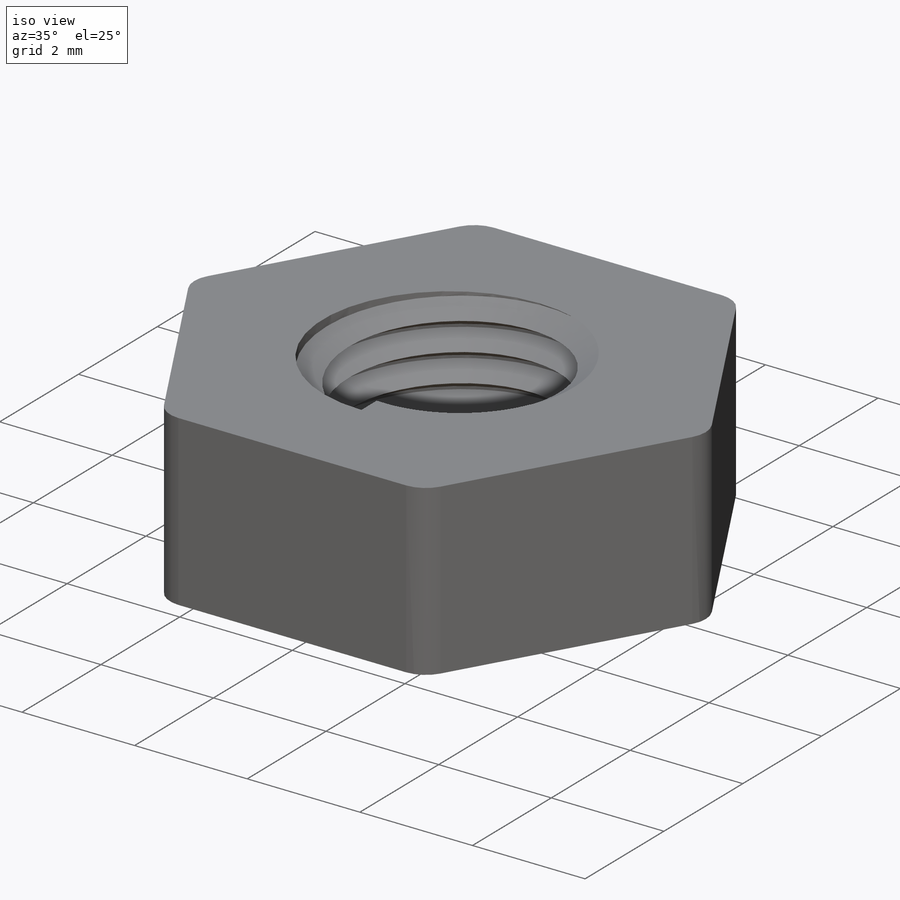
[diagram: iso view]
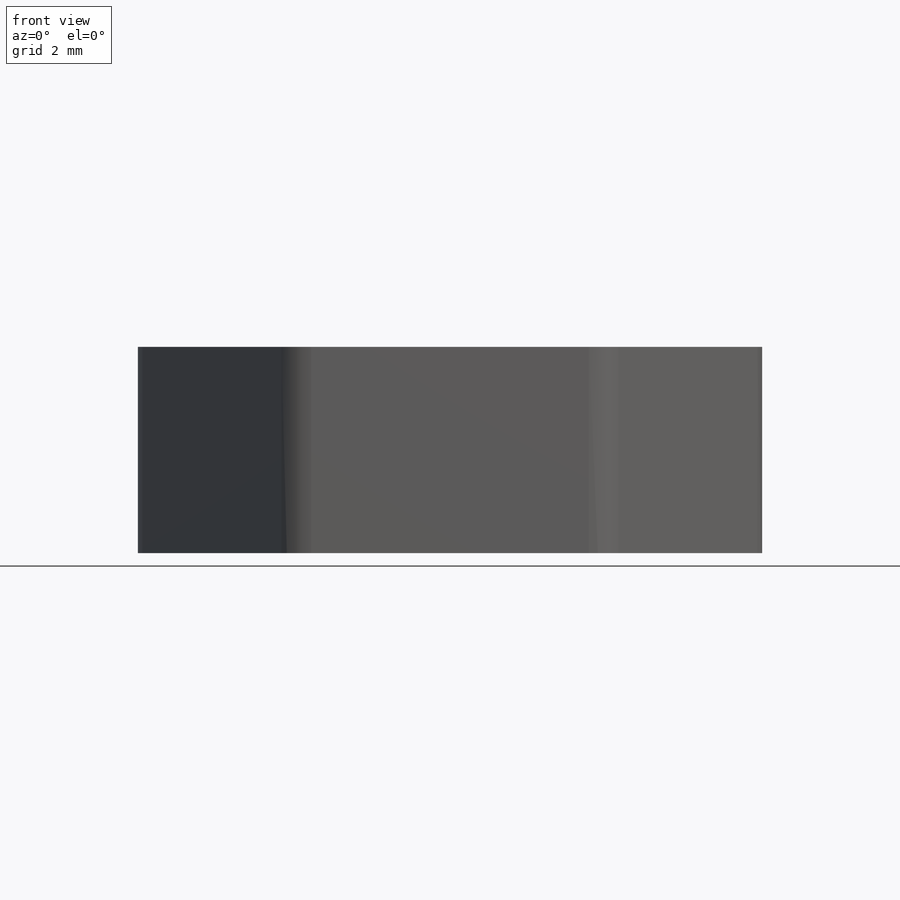
[diagram: front view]
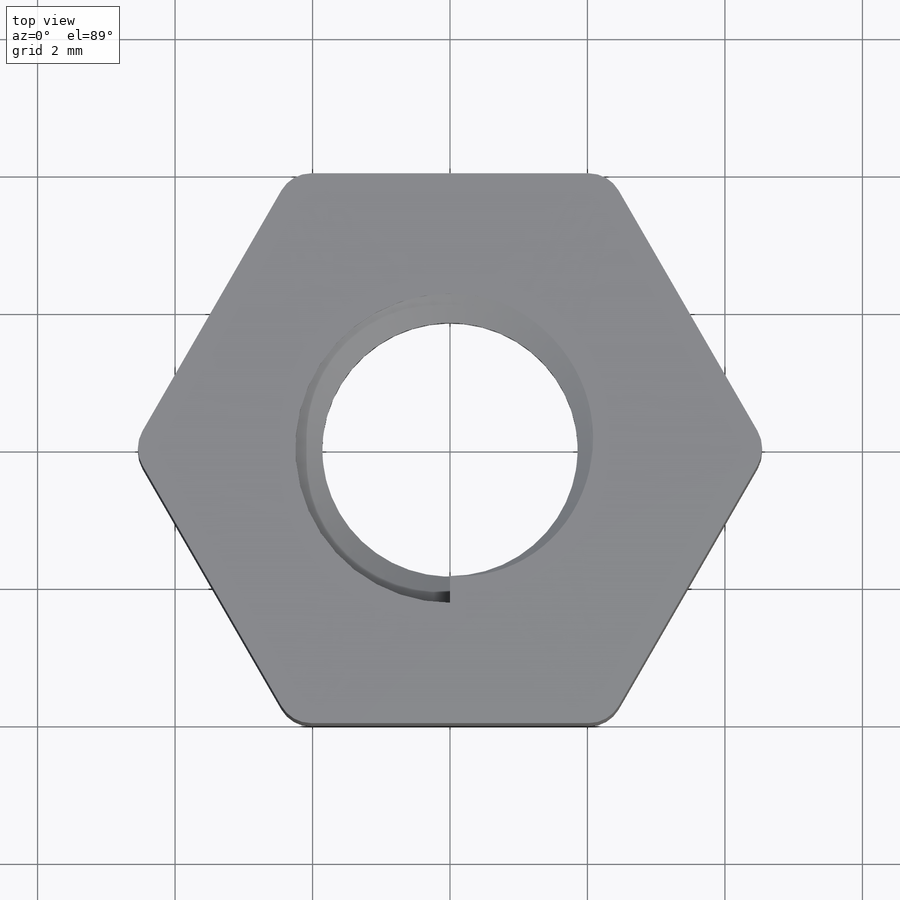
[diagram: top view]
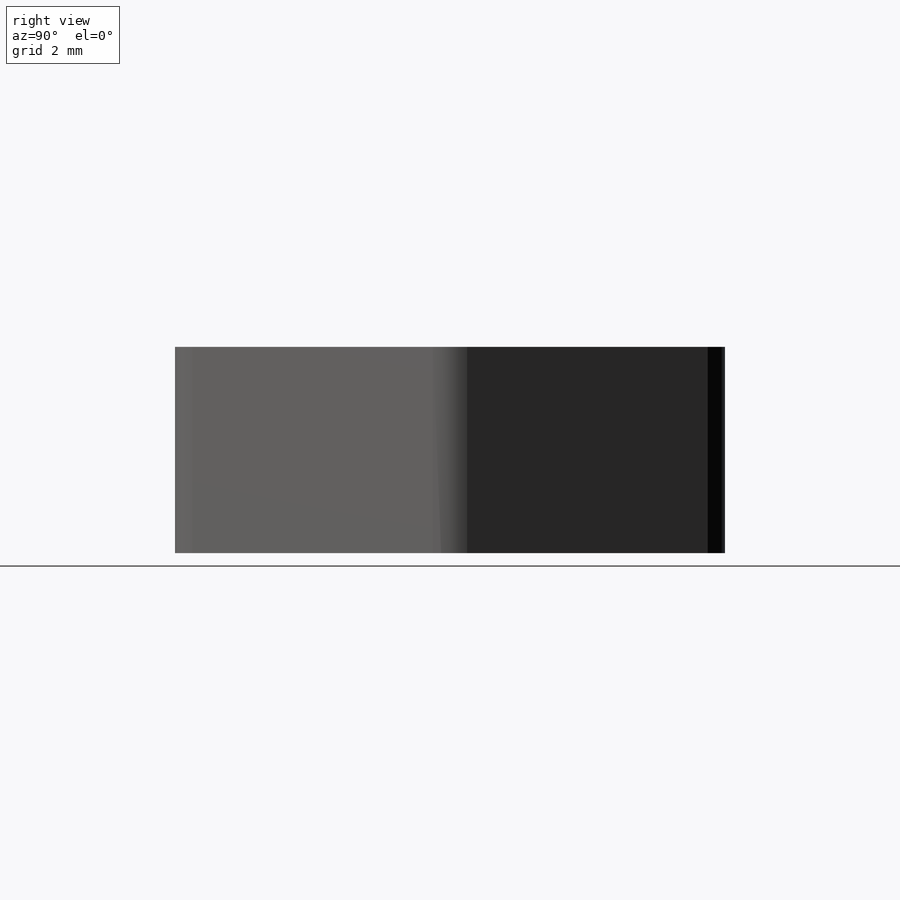
[diagram: right view]
SOLIDWORKS PART (.sldprt)
format: sldprt  version: not decoded by parser v0  size: 257,536 bytes
history: native  units: mm
features: sketch x4, plane x2, material x1, extrude x1, cut_extrude x1, fillet x1, helix x1, sweep x1 (+12 scaffold rows collapsed)
feature tree (24):
  scaffold x12  (default folders/planes/origin — collapsed)
  material  "Material <not specified>"
  sketch  "Sketch1"  dims[D1=8.0mm]
  extrude  "Boss-Extrude1"  Depth=3mm
  sketch  "Sketch2"  dims[D1=4.5mm]
  cut_extrude  "Cut-Extrude1"  [1 undecoded]
  fillet  "Fillet1"  Radius=0.5mm
  sketch  "Sketch4"  dims[D1=4.0mm]
  helix  "Helix/Spiral1"  Pitch=3mm
  sketch  "Sketch5"  dims[D1=0.45mm]
  sweep  "Sweep3"
  plane  "Plane1"
  plane  "Plane2"  SurfaceCut2=0deg
decode coverage: 7 of 9 modeling features carry decoded parameters
note: 1 parameter value undecoded
note: suppression state not decoded; provenance and decode notes live in map.json
